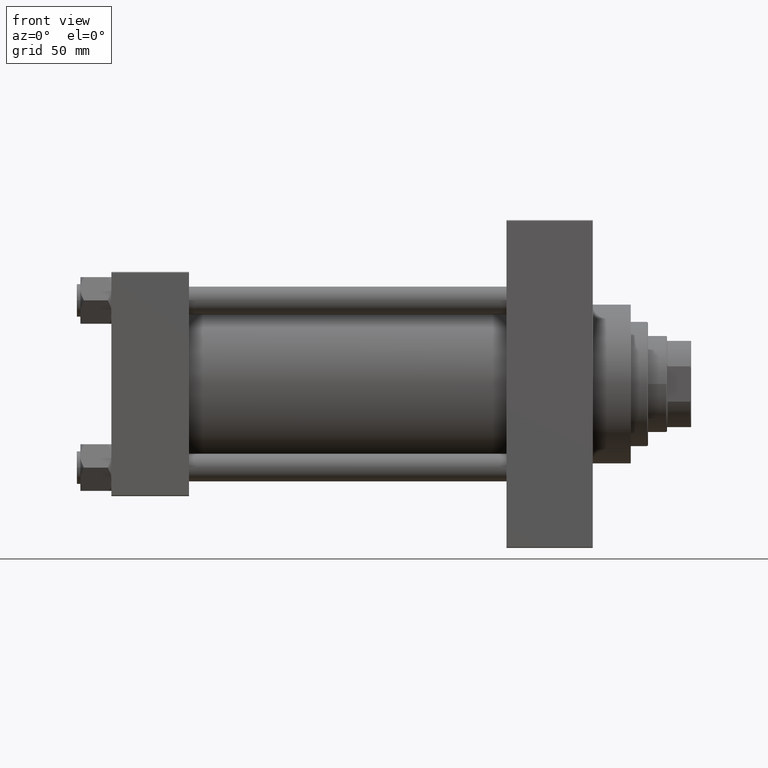
[diagram: clean part render]
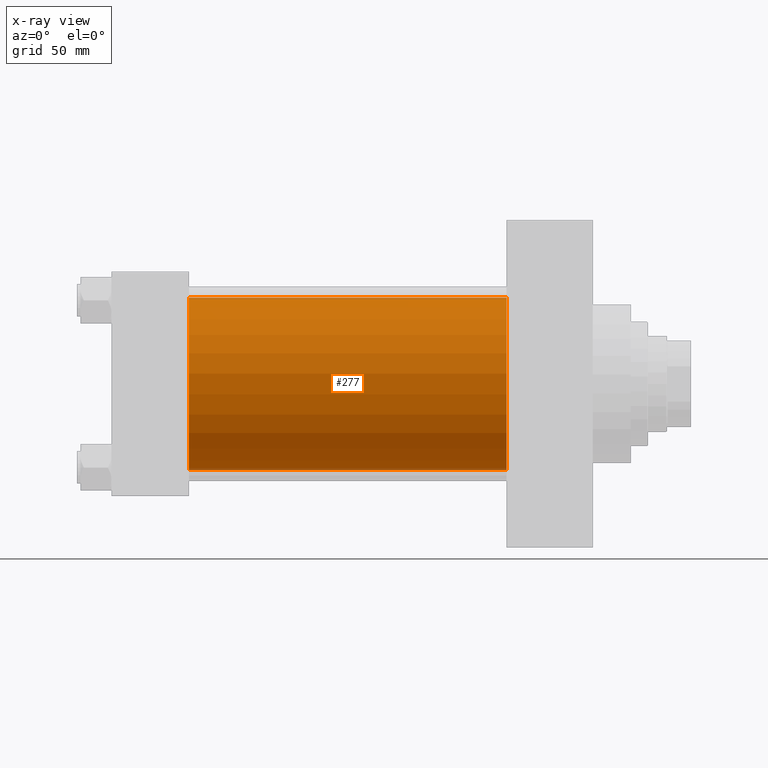
[diagram: x-ray — body ghosted, one internal face saturated and labeled with its STEP entity id]
A machine part, front view, then the same camera in x-ray: the body is ghosted and one INTERNAL B-rep face — a face not visible from any outside direction — is saturated and labeled: STEP entity #277.
In plain terms, the highlighted cylindrical surface (partial cylindrical patch) has radius 50 mm, axis along (-1, -0, -0).
Its self-contained STEP definition (entity closure, byte-faithful):
#111 = AXIS2_PLACEMENT_3D ( 'NONE', #28337, #43076, #35833 ) ;
#277 = ADVANCED_FACE ( 'NONE', ( #17254 ), #31964, .F. ) ;
#1228 = AXIS2_PLACEMENT_3D ( 'NONE', #35136, #19948, #9797 ) ;
#3316 = CARTESIAN_POINT ( 'NONE',  ( 228.9999999999999716, 3.521148781771555838E-15, -50.00000000000000000 ) ) ;
#5668 = VECTOR ( 'NONE', #37382, 1000.000000000000000 ) ;
#6811 = DIRECTION ( 'NONE',  ( 0.000000000000000000, 0.000000000000000000, -1.000000000000000000 ) ) ;
#9797 = DIRECTION ( 'NONE',  ( 0.000000000000000000, 0.000000000000000000, -1.000000000000000000 ) ) ;
#9957 = EDGE_CURVE ( 'NONE', #26025, #21032, #39879, .T. ) ;
#9975 = CIRCLE ( 'NONE', #40814, 50.00000000000000000 ) ;
#13604 = CARTESIAN_POINT ( 'NONE',  ( 228.9999999999999716, 3.521148781771555838E-15, -50.00000000000000000 ) ) ;
#14930 = CARTESIAN_POINT ( 'NONE',  ( 45.00000000000000000, 3.521148781771555838E-15, -50.00000000000000000 ) ) ;
#17254 = FACE_OUTER_BOUND ( 'NONE', #46919, .T. ) ;
#17617 = VERTEX_POINT ( 'NONE', #14930 ) ;
#18771 = VERTEX_POINT ( 'NONE', #3316 ) ;
#19948 = DIRECTION ( 'NONE',  ( 1.000000000000000000, 0.000000000000000000, 0.000000000000000000 ) ) ;
#20051 = ORIENTED_EDGE ( 'NONE', *, *, #30598, .F. ) ;
#21032 = VERTEX_POINT ( 'NONE', #42699 ) ;
#22057 = CIRCLE ( 'NONE', #1228, 50.00000000000000000 ) ;
#26025 = VERTEX_POINT ( 'NONE', #39533 ) ;
#26713 = VECTOR ( 'NONE', #28310, 1000.000000000000000 ) ;
#28310 = DIRECTION ( 'NONE',  ( -1.000000000000000000, -0.000000000000000000, -0.000000000000000000 ) ) ;
#28337 = CARTESIAN_POINT ( 'NONE',  ( 228.9999999999999716, -2.602085213965210642E-15, 0.000000000000000000 ) ) ;
#28989 = CARTESIAN_POINT ( 'NONE',  ( 228.9999999999999716, -2.602085213965210642E-15, 0.000000000000000000 ) ) ;
#30598 = EDGE_CURVE ( 'NONE', #21032, #17617, #22057, .T. ) ;
#30886 = ORIENTED_EDGE ( 'NONE', *, *, #9957, .F. ) ;
#31964 = CYLINDRICAL_SURFACE ( 'NONE', #111, 50.00000000000000000 ) ;
#32762 = EDGE_CURVE ( 'NONE', #18771, #17617, #46427, .T. ) ;
#33955 = ORIENTED_EDGE ( 'NONE', *, *, #32762, .T. ) ;
#35136 = CARTESIAN_POINT ( 'NONE',  ( 45.00000000000000000, -2.602085213965210642E-15, 0.000000000000000000 ) ) ;
#35833 = DIRECTION ( 'NONE',  ( 0.000000000000000000, 0.000000000000000000, 1.000000000000000000 ) ) ;
#37382 = DIRECTION ( 'NONE',  ( -1.000000000000000000, -0.000000000000000000, -0.000000000000000000 ) ) ;
#37882 = ORIENTED_EDGE ( 'NONE', *, *, #41444, .T. ) ;
#39533 = CARTESIAN_POINT ( 'NONE',  ( 228.9999999999999716, -2.602085213965210642E-15, 50.00000000000000000 ) ) ;
#39866 = DIRECTION ( 'NONE',  ( 1.000000000000000000, 0.000000000000000000, 0.000000000000000000 ) ) ;
#39879 = LINE ( 'NONE', #45094, #5668 ) ;
#40814 = AXIS2_PLACEMENT_3D ( 'NONE', #28989, #39866, #6811 ) ;
#41444 = EDGE_CURVE ( 'NONE', #26025, #18771, #9975, .T. ) ;
#42699 = CARTESIAN_POINT ( 'NONE',  ( 45.00000000000000000, -2.602085213965210642E-15, 50.00000000000000000 ) ) ;
#43076 = DIRECTION ( 'NONE',  ( -1.000000000000000000, -0.000000000000000000, -0.000000000000000000 ) ) ;
#45094 = CARTESIAN_POINT ( 'NONE',  ( 228.9999999999999716, -2.602085213965210642E-15, 50.00000000000000000 ) ) ;
#46427 = LINE ( 'NONE', #13604, #26713 ) ;
#46919 = EDGE_LOOP ( 'NONE', ( #37882, #33955, #20051, #30886 ) ) ;